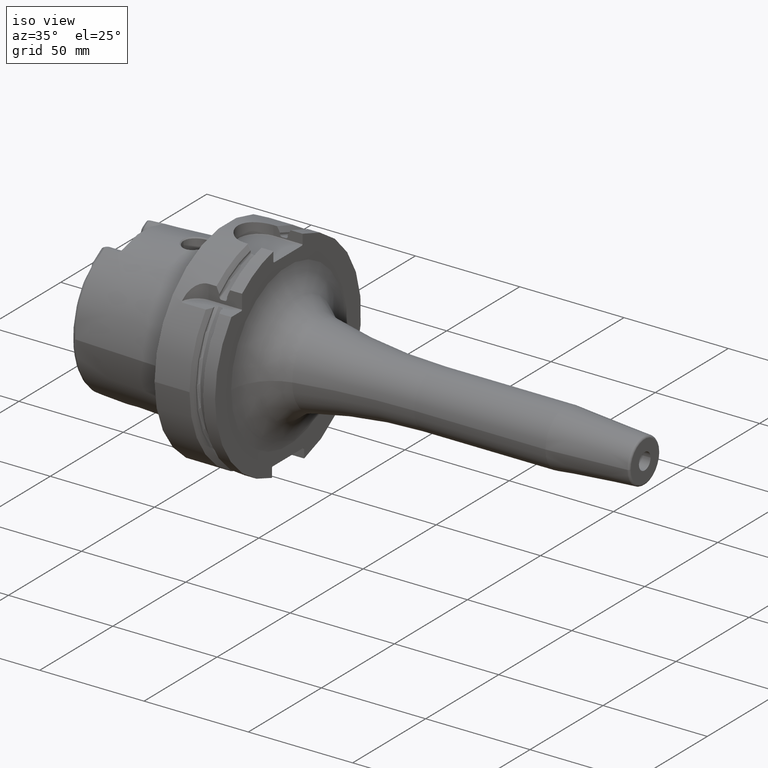
[diagram: clean part render]
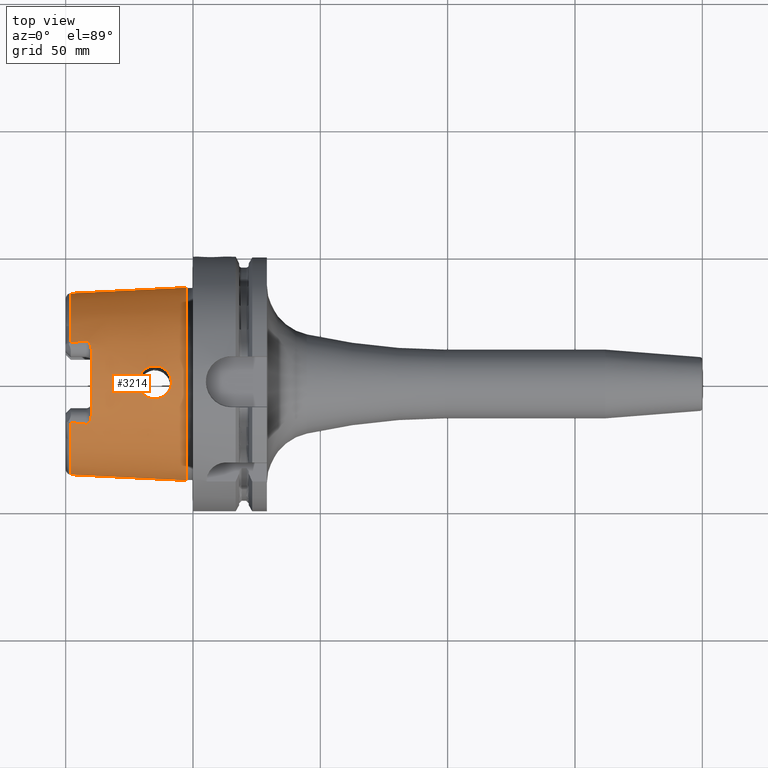
[diagram: tour spotlight — one face highlighted and labeled with its STEP entity id]
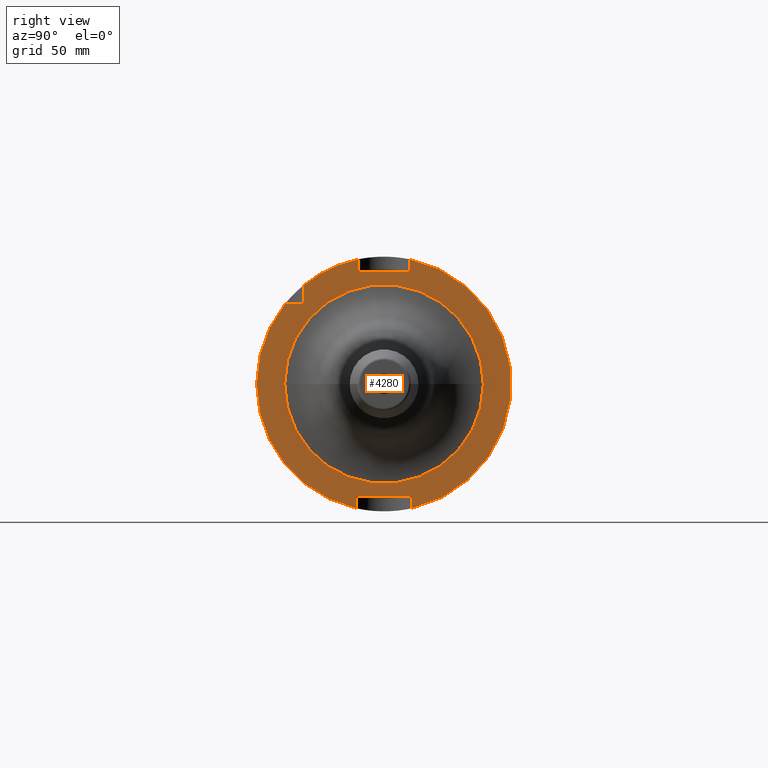
[diagram: tour spotlight — one face highlighted and labeled with its STEP entity id]
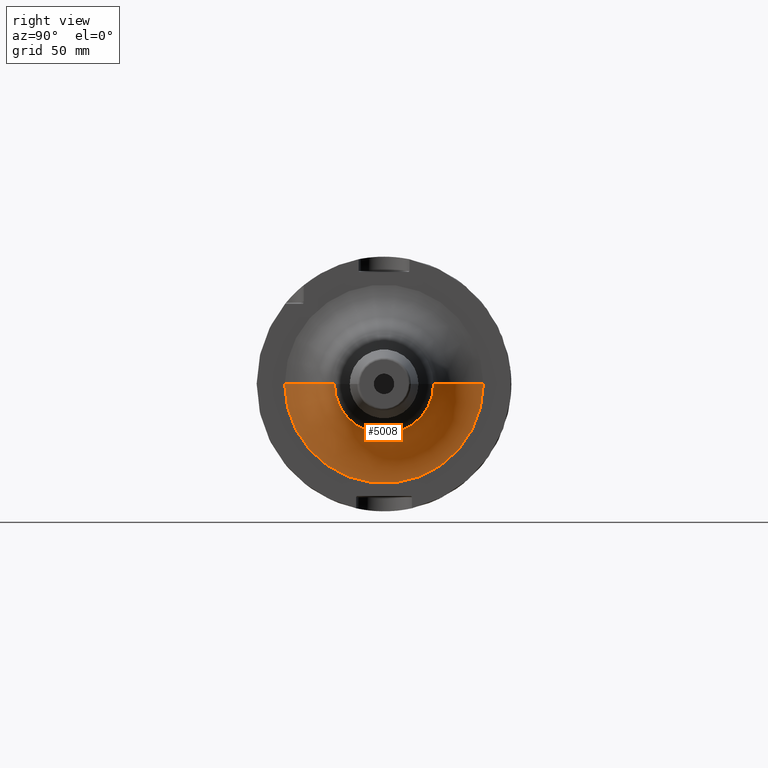
[diagram: tour spotlight — one face highlighted and labeled with its STEP entity id]
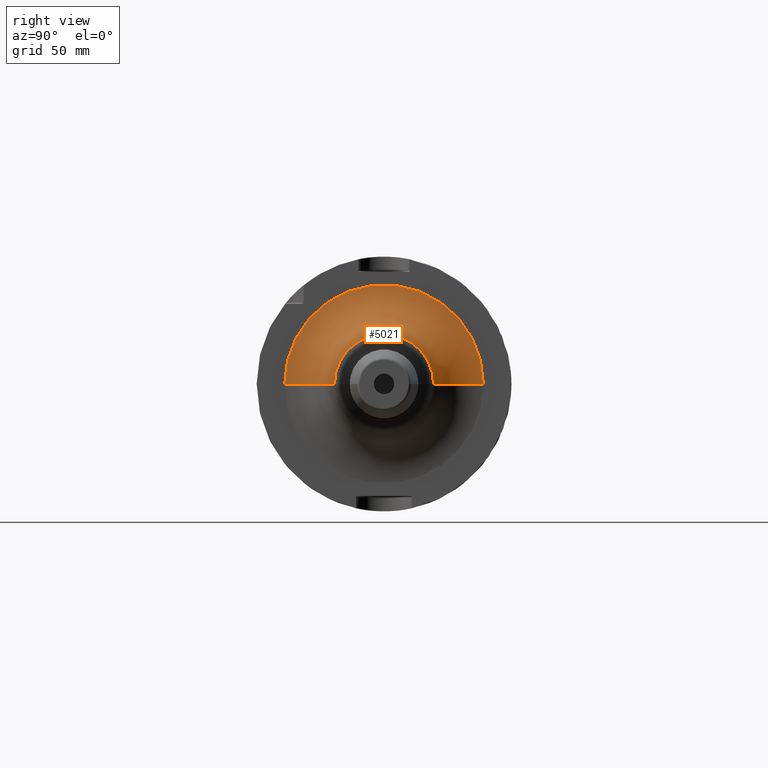
[diagram: tour spotlight — one face highlighted and labeled with its STEP entity id]
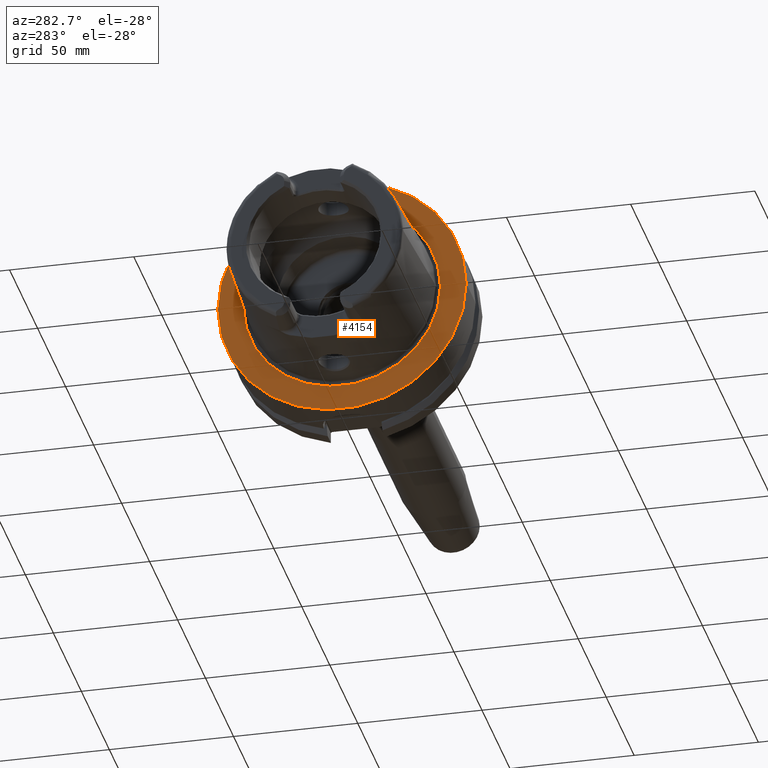
[diagram: tour spotlight — one face highlighted and labeled with its STEP entity id]
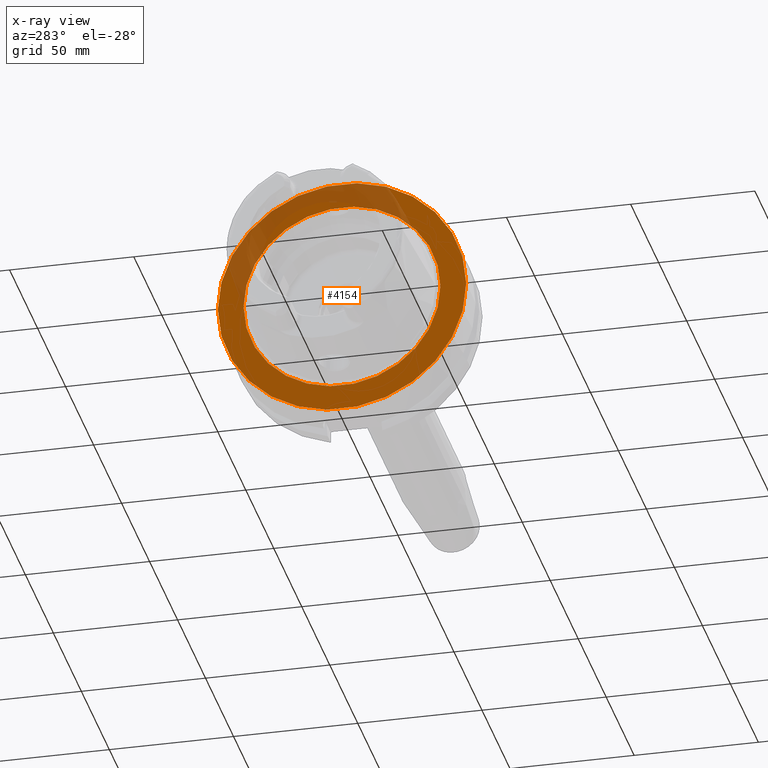
[diagram: x-ray of the same camera — body ghosted, this tour face saturated]
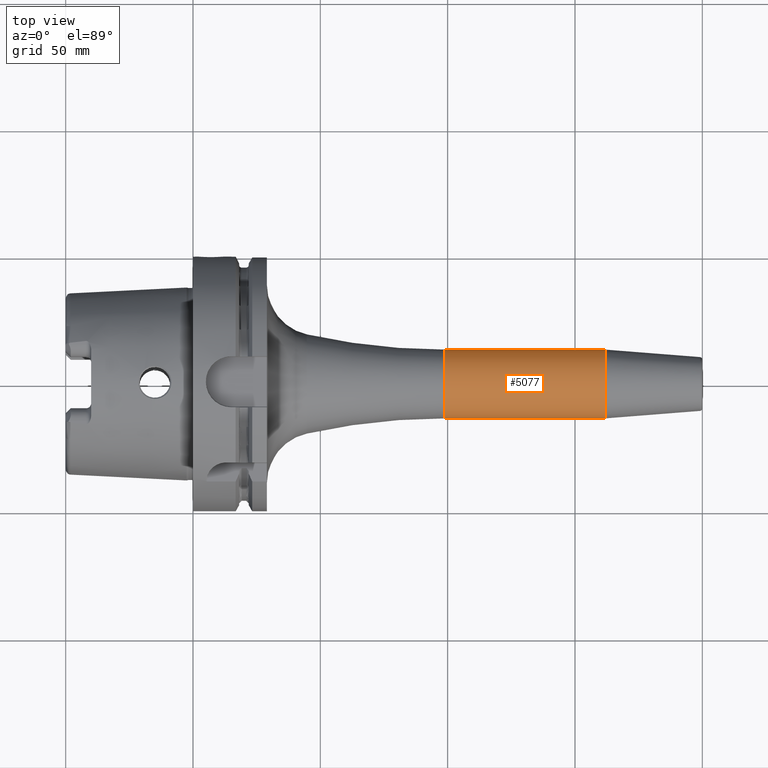
[diagram: tour spotlight — one face highlighted and labeled with its STEP entity id]
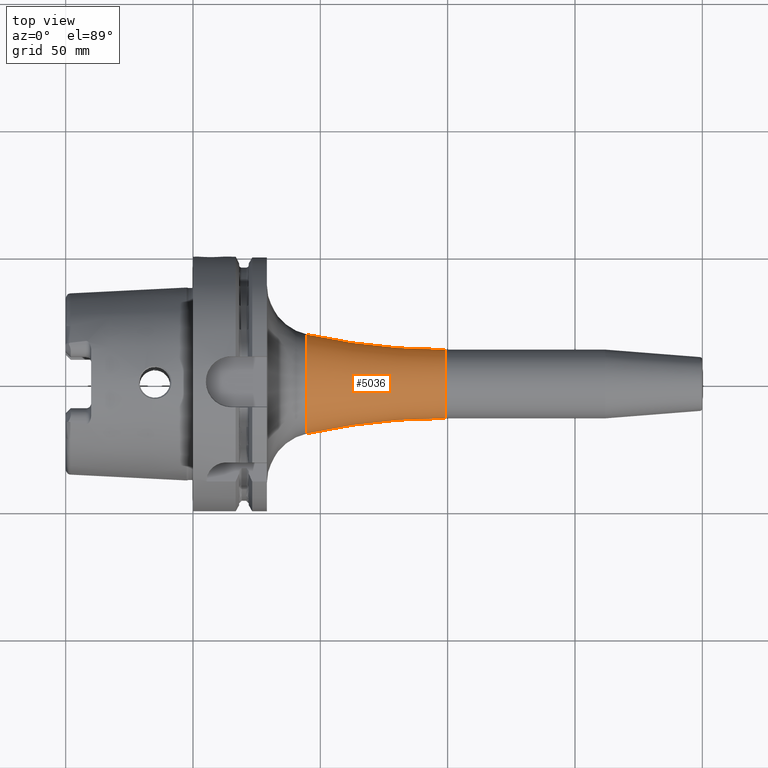
[diagram: tour spotlight — one face highlighted and labeled with its STEP entity id]
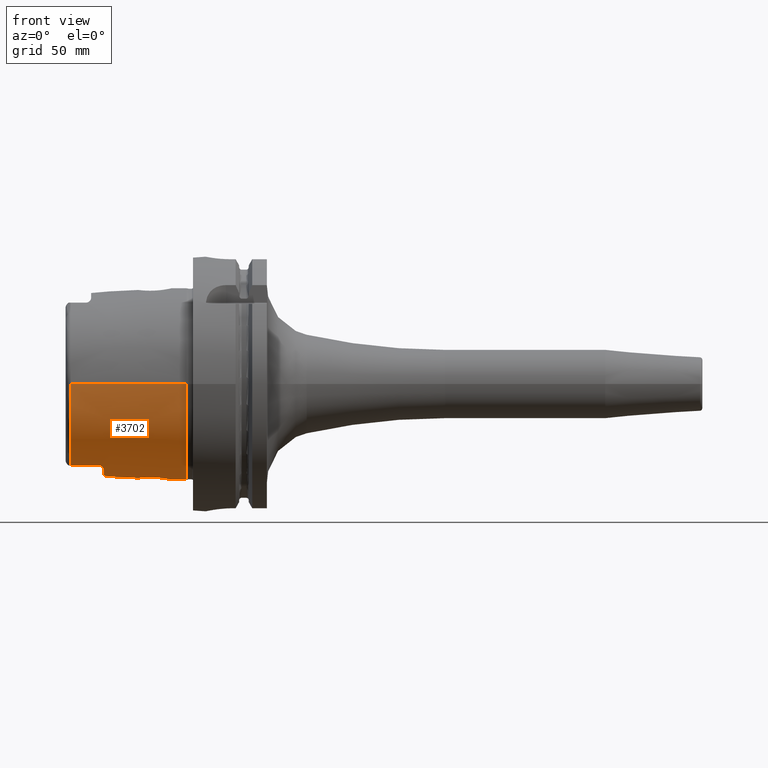
[diagram: tour spotlight — one face highlighted and labeled with its STEP entity id]
A machine part: a face-by-face anatomy tour. The part has 176 B-rep faces; the first image is the clean iso view, then the 8 largest visible faces are spotlighted one at a time (largest first), each with its STEP entity span.

Face 1 — top view, entity #3214. In plain terms, the highlighted conical surface has half-angle 2.868 deg.
Definition (entity closure, byte-faithful):
#2=CARTESIAN_POINT('',(-4.810007448473E1,-1.567653238626E1,3.196E1));
#3=CARTESIAN_POINT('',(-4.743649089753E1,-1.575202511592E1,3.196E1));
#4=CARTESIAN_POINT('',(-4.609985749196E1,-1.590320831227E1,3.196E1));
#5=CARTESIAN_POINT('',(-4.406668280177E1,-1.613055880919E1,3.196E1));
#6=CARTESIAN_POINT('',(-4.269206894520E1,-1.628254944441E1,3.196E1));
#7=CARTESIAN_POINT('',(-4.2E1,-1.635864758744E1,3.196E1));
#9=CARTESIAN_POINT('',(-4.E1,0.E0,0.E0));
#10=DIRECTION('',(1.E0,0.E0,0.E0));
#11=DIRECTION('',(0.E0,3.574556786365E-1,9.339301032789E-1));
#12=AXIS2_PLACEMENT_3D('',#9,#10,#11);
#14=CARTESIAN_POINT('',(-4.2E1,1.635864758744E1,3.196E1));
#15=CARTESIAN_POINT('',(-4.269204070145E1,1.628255255002E1,3.196E1));
#16=CARTESIAN_POINT('',(-4.406661691692E1,1.613056612298E1,3.196E1));
#17=CARTESIAN_POINT('',(-4.609979244919E1,1.590321563865E1,3.196E1));
#18=CARTESIAN_POINT('',(-4.743646302974E1,1.575202828631E1,3.196E1));
#19=CARTESIAN_POINT('',(-4.810007448473E1,1.567653238626E1,3.196E1));
#21=CARTESIAN_POINT('',(-2.5E0,0.E0,0.E0));
#22=DIRECTION('',(1.E0,0.E0,0.E0));
#23=DIRECTION('',(0.E0,1.E0,0.E0));
#24=AXIS2_PLACEMENT_3D('',#21,#22,#23);
#26=CARTESIAN_POINT('',(-2.149938207697E1,5.552926221647E-11,3.693037254664E1));
#27=CARTESIAN_POINT('',(-2.149947810722E1,2.456946967410E-1,3.693041400584E1));
#28=CARTESIAN_POINT('',(-2.146978943123E1,7.663421073483E-1,3.692663668754E1));
#29=CARTESIAN_POINT('',(-2.132902699242E1,1.552723327933E0,3.690919478302E1));
#30=CARTESIAN_POINT('',(-2.108091480959E1,2.342139536845E0,3.687974365394E1));
#31=CARTESIAN_POINT('',(-2.073440330363E1,3.094103832942E0,3.684140909161E1));
#32=CARTESIAN_POINT('',(-2.029456045373E1,3.796705318232E0,3.679744070735E1));
#33=CARTESIAN_POINT('',(-1.976895967621E1,4.437440706102E0,3.675180792921E1));
#34=CARTESIAN_POINT('',(-1.916766491360E1,5.004833501251E0,3.670884542936E1));
#35=CARTESIAN_POINT('',(-1.850089510031E1,5.490460623479E0,3.667275311991E1));
#36=CARTESIAN_POINT('',(-1.777939225152E1,5.887431777884E0,3.664739565010E1));
#37=CARTESIAN_POINT('',(-1.701424609593E1,6.190220322635E0,3.663607600264E1));
#38=CARTESIAN_POINT('',(-1.621758055837E1,6.394419176819E0,3.664131821143E1));
#39=CARTESIAN_POINT('',(-1.539955429301E1,6.497326105441E0,3.666474029556E1));
#40=CARTESIAN_POINT('',(-1.457114975166E1,6.496134002949E0,3.670710840669E1));
#41=CARTESIAN_POINT('',(-1.375127425398E1,6.390454994673E0,3.676745544266E1));
#42=CARTESIAN_POINT('',(-1.294983719070E1,6.181706493026E0,3.684404556607E1));
#43=CARTESIAN_POINT('',(-1.217938970715E1,5.872066509057E0,3.693403258601E1));
#44=CARTESIAN_POINT('',(-1.145343003562E1,5.466036101540E0,3.703341626103E1));
#45=CARTESIAN_POINT('',(-1.078465658031E1,4.970022940288E0,3.713742863004E1));
#46=CARTESIAN_POINT('',(-1.018517891880E1,4.392789013038E0,3.724075525816E1));
#47=CARTESIAN_POINT('',(-9.665388344352E0,3.744837411386E0,3.733802077293E1));
#48=CARTESIAN_POINT('',(-9.234092519568E0,3.038687491876E0,3.742410507514E1));
#49=CARTESIAN_POINT('',(-8.897351452215E0,2.287331206380E0,3.749468513875E1));
#50=CARTESIAN_POINT('',(-8.658527750933E0,1.501792221622E0,3.754652778726E1));
#51=CARTESIAN_POINT('',(-8.527369438248E0,7.337668322055E-1,3.757562813366E1));
#52=CARTESIAN_POINT('',(-8.500550849541E0,2.307484502453E-1,3.758164606668E1));
#53=CARTESIAN_POINT('',(-8.500618238409E0,-3.201212427053E-11,
3.758161093072E1));
#55=CARTESIAN_POINT('',(-8.500618238409E0,-3.201212427053E-11,
3.758161093072E1));
#56=CARTESIAN_POINT('',(-8.500529243712E0,-2.424312186462E-1,3.758165761842E1));
#57=CARTESIAN_POINT('',(-8.529377584627E0,-7.570713761110E-1,3.757517365272E1));
#58=CARTESIAN_POINT('',(-8.666699960505E0,-1.535920192154E0,3.754473037167E1));
#59=CARTESIAN_POINT('',(-8.909712492800E0,-2.320075305293E0,3.749204213674E1));
#60=CARTESIAN_POINT('',(-9.250504215006E0,-3.069650750447E0,3.742074072411E1));
#61=CARTESIAN_POINT('',(-9.685687617568E0,-3.773592271729E0,3.733408895737E1));
#62=CARTESIAN_POINT('',(-1.020908185061E1,-4.418816591912E0,3.723645352953E1));
#63=CARTESIAN_POINT('',(-1.081164311031E1,-4.992724782849E0,3.713300191729E1));
#64=CARTESIAN_POINT('',(-1.148289197008E1,-5.484961003997E0,3.702910971345E1));
#65=CARTESIAN_POINT('',(-1.221077052890E1,-5.886958600290E0,3.693005620282E1));
#66=CARTESIAN_POINT('',(-1.298272715167E1,-6.192450910075E0,3.684056019680E1));
#67=CARTESIAN_POINT('',(-1.378543745730E1,-6.397007236175E0,3.676457229973E1));
#68=CARTESIAN_POINT('',(-1.460657276070E1,-6.498354658048E0,3.670491060908E1));
#69=CARTESIAN_POINT('',(-1.543495839616E1,-6.495033034286E0,3.666334714016E1));
#70=CARTESIAN_POINT('',(-1.625254215847E1,-6.387680563827E0,3.664072182306E1));
#71=CARTESIAN_POINT('',(-1.704827269515E1,-6.179075952149E0,3.663623858926E1));
#72=CARTESIAN_POINT('',(-1.781166108930E1,-5.872129661425E0,3.664822647582E1));
#73=CARTESIAN_POINT('',(-1.853088883617E1,-5.471276112331E0,3.667411627299E1));
#74=CARTESIAN_POINT('',(-1.919496044775E1,-4.982042332370E0,3.671058230959E1));
#75=CARTESIAN_POINT('',(-1.979312959260E1,-4.411388967116E0,3.675374151488E1));
#76=CARTESIAN_POINT('',(-2.031520136204E1,-3.767815751250E0,3.679938652908E1));
#77=CARTESIAN_POINT('',(-2.075116173440E1,-3.062888856216E0,3.684318827995E1));
#78=CARTESIAN_POINT('',(-2.109352623852E1,-2.309166702590E0,3.688120055672E1));
#79=CARTESIAN_POINT('',(-2.133733752753E1,-1.518482485311E0,3.691020909579E1));
#80=CARTESIAN_POINT('',(-2.147183542910E1,-7.429704319279E-1,3.692690027450E1));
#81=CARTESIAN_POINT('',(-2.149945558988E1,-2.340112752743E-1,3.693040395664E1));
#82=CARTESIAN_POINT('',(-2.149938207697E1,5.552926221647E-11,3.693037254664E1));
#248=CARTESIAN_POINT('',(-4.044615405310E1,1.501E1,3.270080868281E1));
#249=CARTESIAN_POINT('',(-4.036716971646E1,1.480714421409E1,3.279827559643E1));
#250=CARTESIAN_POINT('',(-4.023151678165E1,1.441318283024E1,3.298193753654E1));
#251=CARTESIAN_POINT('',(-4.009402199227E1,1.386111148947E1,3.322490472400E1));
#252=CARTESIAN_POINT('',(-4.001617021866E1,1.334582492697E1,3.343918234932E1));
#253=CARTESIAN_POINT('',(-4.E1,1.302441475567E1,3.356551938374E1));
#254=CARTESIAN_POINT('',(-4.E1,1.286965552579E1,3.362475247340E1));
#312=CARTESIAN_POINT('',(-4.810007448473E1,0.E0,0.E0));
#313=DIRECTION('',(1.E0,0.E0,0.E0));
#314=DIRECTION('',(0.E0,1.E0,0.E0));
#315=AXIS2_PLACEMENT_3D('',#312,#313,#314);
#387=CARTESIAN_POINT('',(-4.810007448473E1,0.E0,0.E0));
#388=DIRECTION('',(1.E0,0.E0,0.E0));
#389=DIRECTION('',(0.E0,-4.403806547453E-1,8.978111599474E-1));
#390=AXIS2_PLACEMENT_3D('',#387,#388,#389);
#561=DIRECTION('',(-9.987473526255E-1,5.003724236654E-2,0.E0));
#562=VECTOR('',#561,4.565726694029E1);
#563=CARTESIAN_POINT('',(-2.5E0,-3.788225E1,0.E0));
#564=LINE('',#563,#562);
#570=DIRECTION('',(-9.987473526255E-1,-5.003724236654E-2,0.E0));
#571=VECTOR('',#570,4.565726694029E1);
#572=CARTESIAN_POINT('',(-2.5E0,3.788225E1,0.E0));
#573=LINE('',#572,#571);
#2597=CARTESIAN_POINT('',(-4.E1,-1.286965552579E1,3.362475247340E1));
#2598=CARTESIAN_POINT('',(-4.E1,-1.302441541648E1,3.356551913082E1));
#2599=CARTESIAN_POINT('',(-4.001617018251E1,-1.334582535629E1,
3.343918219674E1));
#2600=CARTESIAN_POINT('',(-4.009402242674E1,-1.386111200207E1,
3.322490442026E1));
#2601=CARTESIAN_POINT('',(-4.023151276023E1,-1.441316885171E1,
3.298194383001E1));
#2602=CARTESIAN_POINT('',(-4.036716744567E1,-1.480713838201E1,
3.279827839859E1));
#2603=CARTESIAN_POINT('',(-4.044615405310E1,-1.501E1,3.270080868281E1));
#2679=CARTESIAN_POINT('',(-4.044615405310E1,-1.501E1,3.270080868281E1));
#2680=CARTESIAN_POINT('',(-4.048970886745E1,-1.512186200292E1,
3.264706190833E1));
#2681=CARTESIAN_POINT('',(-4.058203784729E1,-1.533106618308E1,
3.254453864538E1));
#2682=CARTESIAN_POINT('',(-4.073432021554E1,-1.560191666355E1,
3.240695208273E1));
#2683=CARTESIAN_POINT('',(-4.089735125525E1,-1.582886077686E1,
3.228748605874E1));
#2684=CARTESIAN_POINT('',(-4.106769081077E1,-1.601331012900E1,
3.218678608847E1));
#2685=CARTESIAN_POINT('',(-4.125393253486E1,-1.616457753287E1,
3.210056649743E1));
#2686=CARTESIAN_POINT('',(-4.144626840802E1,-1.627335249792E1,
3.203468630644E1));
#2687=CARTESIAN_POINT('',(-4.163743535609E1,-1.633966611997E1,
3.199012198327E1));
#2688=CARTESIAN_POINT('',(-4.181861360320E1,-1.636784997544E1,
3.196549826812E1));
#2689=CARTESIAN_POINT('',(-4.194004005827E1,-1.636524063030E1,3.196E1));
#2690=CARTESIAN_POINT('',(-4.2E1,-1.635864758744E1,3.196E1));
#2700=CARTESIAN_POINT('',(-4.2E1,1.635864758744E1,3.196E1));
#2701=CARTESIAN_POINT('',(-4.193871342572E1,1.636538650345E1,3.196E1));
#2702=CARTESIAN_POINT('',(-4.181450390691E1,1.636814761969E1,3.196557762379E1));
#2703=CARTESIAN_POINT('',(-4.162243507007E1,1.633619695788E1,3.199274042675E1));
#2704=CARTESIAN_POINT('',(-4.143278453244E1,1.626680995517E1,3.203876886227E1));
#2705=CARTESIAN_POINT('',(-4.124494122381E1,1.615802805146E1,3.210436522250E1));
#2706=CARTESIAN_POINT('',(-4.106242535143E1,1.600818739776E1,3.218962850171E1));
#2707=CARTESIAN_POINT('',(-4.089248890939E1,1.582281513116E1,3.229072139863E1));
#2708=CARTESIAN_POINT('',(-4.073124146543E1,1.559684012110E1,3.240956146553E1));
#2709=CARTESIAN_POINT('',(-4.058058611384E1,1.532793070389E1,3.254608698749E1));
#2710=CARTESIAN_POINT('',(-4.048925691866E1,1.512070126105E1,3.264761961452E1));
#2711=CARTESIAN_POINT('',(-4.044615405310E1,1.501E1,3.270080868281E1));
#2733=CARTESIAN_POINT('',(-2.5E0,3.788225E1,0.E0));
#2734=CARTESIAN_POINT('',(-2.5E0,-3.788225E1,0.E0));
#2735=VERTEX_POINT('',#2733);
#2736=VERTEX_POINT('',#2734);
#2737=CARTESIAN_POINT('',(-4.810007448473E1,3.559768626831E1,0.E0));
#2738=VERTEX_POINT('',#2737);
#2739=CARTESIAN_POINT('',(-4.810007448473E1,-3.559768626831E1,0.E0));
#2740=VERTEX_POINT('',#2739);
#2777=CARTESIAN_POINT('',(-4.810007448473E1,1.567653238626E1,3.196E1));
#2778=VERTEX_POINT('',#2777);
#2779=CARTESIAN_POINT('',(-4.810007448473E1,-1.567653238626E1,3.196E1));
#2780=VERTEX_POINT('',#2779);
#2789=CARTESIAN_POINT('',(-4.E1,1.286965552579E1,3.362475247340E1));
#2790=VERTEX_POINT('',#2789);
#2793=CARTESIAN_POINT('',(-4.2E1,1.635864758744E1,3.196E1));
#2794=VERTEX_POINT('',#2793);
#2795=CARTESIAN_POINT('',(-4.E1,-1.286965552579E1,3.362475247340E1));
#2796=VERTEX_POINT('',#2795);
#2799=CARTESIAN_POINT('',(-4.2E1,-1.635864758744E1,3.196E1));
#2800=VERTEX_POINT('',#2799);
#2801=VERTEX_POINT('',#2711);
#2802=VERTEX_POINT('',#2679);
#2942=VERTEX_POINT('',#26);
#2943=VERTEX_POINT('',#53);
#3177=CARTESIAN_POINT('',(-2.530003724237E1,0.E0,0.E0));
#3178=DIRECTION('',(1.E0,0.E0,0.E0));
#3179=DIRECTION('',(0.E0,-1.E0,0.E0));
#3180=AXIS2_PLACEMENT_3D('',#3177,#3178,#3179);
#3181=CONICAL_SURFACE('',#3180,3.673996813416E1,2.868120487315E0);
#3183=ORIENTED_EDGE('',*,*,#3182,.T.);
#3185=ORIENTED_EDGE('',*,*,#3184,.F.);
#3187=ORIENTED_EDGE('',*,*,#3186,.F.);
#3189=ORIENTED_EDGE('',*,*,#3188,.F.);
#3191=ORIENTED_EDGE('',*,*,#3190,.F.);
#3193=ORIENTED_EDGE('',*,*,#3192,.F.);
#3195=ORIENTED_EDGE('',*,*,#3194,.T.);
#3197=ORIENTED_EDGE('',*,*,#3196,.F.);
#3199=ORIENTED_EDGE('',*,*,#3198,.F.);
#3201=ORIENTED_EDGE('',*,*,#3200,.T.);
#3203=ORIENTED_EDGE('',*,*,#3202,.T.);
#3205=ORIENTED_EDGE('',*,*,#3204,.F.);
#3206=EDGE_LOOP('',(#3183,#3185,#3187,#3189,#3191,#3193,#3195,#3197,#3199,#3201,
#3203,#3205));
#3207=FACE_OUTER_BOUND('',#3206,.F.);
#3209=ORIENTED_EDGE('',*,*,#3208,.F.);
#3211=ORIENTED_EDGE('',*,*,#3210,.F.);
#3212=EDGE_LOOP('',(#3209,#3211));
#3213=FACE_BOUND('',#3212,.F.);
#3214=ADVANCED_FACE('',(#3207,#3213),#3181,.T.);
#8=B_SPLINE_CURVE_WITH_KNOTS('',3,(#2,#3,#4,#5,#6,#7),.UNSPECIFIED.,.F.,.F.,(4,
1,1,4),(0.E0,3.333333333333E-1,6.666666666667E-1,1.E0),.UNSPECIFIED.);
#13=CIRCLE('',#12,3.60035E1);
#20=B_SPLINE_CURVE_WITH_KNOTS('',3,(#14,#15,#16,#17,#18,#19),.UNSPECIFIED.,.F.,
.F.,(4,1,1,4),(0.E0,3.333333333333E-1,6.666666666667E-1,1.E0),.UNSPECIFIED.);
#25=CIRCLE('',#24,3.788225E1);
#54=B_SPLINE_CURVE_WITH_KNOTS('',3,(#26,#27,#28,#29,#30,#31,#32,#33,#34,#35,#36,
#37,#38,#39,#40,#41,#42,#43,#44,#45,#46,#47,#48,#49,#50,#51,#52,#53),
.UNSPECIFIED.,.F.,.F.,(4,1,1,1,1,1,1,1,1,1,1,1,1,1,1,1,1,1,1,1,1,1,1,1,1,4),(
0.E0,3.626792904996E-2,7.667308714875E-2,1.170782452475E-1,1.574834033463E-1,
1.978885614451E-1,2.382937195439E-1,2.786988776427E-1,3.191040357415E-1,
3.595091938403E-1,3.999143519391E-1,4.403195100379E-1,4.807246681367E-1,
5.211298262355E-1,5.615349843343E-1,6.019401424331E-1,6.423453005319E-1,
6.827504586307E-1,7.231556167295E-1,7.635607748283E-1,8.039659329271E-1,
8.443710910259E-1,8.847762491247E-1,9.251814072235E-1,9.655865653223E-1,1.E0),
.UNSPECIFIED.);
#83=B_SPLINE_CURVE_WITH_KNOTS('',3,(#55,#56,#57,#58,#59,#60,#61,#62,#63,#64,#65,
#66,#67,#68,#69,#70,#71,#72,#73,#74,#75,#76,#77,#78,#79,#80,#81,#82),
.UNSPECIFIED.,.F.,.F.,(4,1,1,1,1,1,1,1,1,1,1,1,1,1,1,1,1,1,1,1,1,1,1,1,1,4),(
0.E0,3.618329534544E-2,7.658712835106E-2,1.169909613567E-1,1.573947943623E-1,
1.977986273679E-1,2.382024603735E-1,2.786062933791E-1,3.190101263848E-1,
3.594139593904E-1,3.998177923960E-1,4.402216254016E-1,4.806254584072E-1,
5.210292914128E-1,5.614331244184E-1,6.018369574241E-1,6.422407904297E-1,
6.826446234353E-1,7.230484564409E-1,7.634522894465E-1,8.038561224521E-1,
8.442599554578E-1,8.846637884634E-1,9.250676214690E-1,9.654714544746E-1,1.E0),
.UNSPECIFIED.);
#255=B_SPLINE_CURVE_WITH_KNOTS('',3,(#248,#249,#250,#251,#252,#253,#254),
.UNSPECIFIED.,.F.,.F.,(4,1,1,1,4),(0.E0,2.5E-1,5.E-1,7.5E-1,1.E0),
.UNSPECIFIED.);
#316=CIRCLE('',#315,3.559768626831E1);
#391=CIRCLE('',#390,3.559768626831E1);
#2604=B_SPLINE_CURVE_WITH_KNOTS('',3,(#2597,#2598,#2599,#2600,#2601,#2602,
#2603),.UNSPECIFIED.,.F.,.F.,(4,1,1,1,4),(0.E0,2.5E-1,5.E-1,7.5E-1,1.E0),
.UNSPECIFIED.);
#2691=B_SPLINE_CURVE_WITH_KNOTS('',3,(#2679,#2680,#2681,#2682,#2683,#2684,#2685,
#2686,#2687,#2688,#2689,#2690),.UNSPECIFIED.,.F.,.F.,(4,1,1,1,1,1,1,1,1,4),
(0.E0,1.111111111111E-1,2.222222222222E-1,3.333333333333E-1,4.444444444444E-1,
5.555555555556E-1,6.666666666667E-1,7.777777777778E-1,8.888888888889E-1,1.E0),
.UNSPECIFIED.);
#2712=B_SPLINE_CURVE_WITH_KNOTS('',3,(#2700,#2701,#2702,#2703,#2704,#2705,#2706,
#2707,#2708,#2709,#2710,#2711),.UNSPECIFIED.,.F.,.F.,(4,1,1,1,1,1,1,1,1,4),
(0.E0,1.111111111111E-1,2.222222222222E-1,3.333333333333E-1,4.444444444444E-1,
5.555555555556E-1,6.666666666667E-1,7.777777777778E-1,8.888888888889E-1,1.E0),
.UNSPECIFIED.);
#3182=EDGE_CURVE('',#2780,#2800,#8,.T.);
#3184=EDGE_CURVE('',#2802,#2800,#2691,.T.);
#3186=EDGE_CURVE('',#2796,#2802,#2604,.T.);
#3188=EDGE_CURVE('',#2790,#2796,#13,.T.);
#3190=EDGE_CURVE('',#2801,#2790,#255,.T.);
#3192=EDGE_CURVE('',#2794,#2801,#2712,.T.);
#3194=EDGE_CURVE('',#2794,#2778,#20,.T.);
#3196=EDGE_CURVE('',#2738,#2778,#316,.T.);
#3198=EDGE_CURVE('',#2735,#2738,#573,.T.);
#3200=EDGE_CURVE('',#2735,#2736,#25,.T.);
#3202=EDGE_CURVE('',#2736,#2740,#564,.T.);
#3204=EDGE_CURVE('',#2780,#2740,#391,.T.);
#3208=EDGE_CURVE('',#2942,#2943,#54,.T.);
#3210=EDGE_CURVE('',#2943,#2942,#83,.T.);

Face 2 — right view, entity #4280. In plain terms, the highlighted planar face has unit normal (1, 0, 0).
Definition (entity closure, byte-faithful):
#1051=DIRECTION('',(0.E0,-7.071067811865E-1,-7.071067811865E-1));
#1052=VECTOR('',#1051,5.656854249492E-1);
#1053=CARTESIAN_POINT('',(2.9E1,-3.15E1,3.19E1));
#1054=LINE('',#1053,#1052);
#1059=DIRECTION('',(0.E0,1.E0,0.E0));
#1060=VECTOR('',#1059,6.929756630708E0);
#1061=CARTESIAN_POINT('',(2.9E1,-3.882975663071E1,3.15E1));
#1062=LINE('',#1061,#1060);
#1063=DIRECTION('',(0.E0,0.E0,-1.E0));
#1064=VECTOR('',#1063,6.929756630708E0);
#1065=CARTESIAN_POINT('',(2.9E1,-3.15E1,3.882975663071E1));
#1066=LINE('',#1065,#1064);
#1067=DIRECTION('',(0.E0,0.E0,-1.E0));
#1068=VECTOR('',#1067,4.589794855664E0);
#1069=CARTESIAN_POINT('',(2.9E1,-1.E1,4.898979485566E1));
#1070=LINE('',#1069,#1068);
#1071=DIRECTION('',(0.E0,1.E0,0.E0));
#1072=VECTOR('',#1071,1.92E1);
#1073=CARTESIAN_POINT('',(2.9E1,-9.6E0,4.4E1));
#1074=LINE('',#1073,#1072);
#1075=DIRECTION('',(0.E0,0.E0,-1.E0));
#1076=VECTOR('',#1075,4.589794855664E0);
#1077=CARTESIAN_POINT('',(2.9E1,1.E1,4.898979485566E1));
#1078=LINE('',#1077,#1076);
#1079=DIRECTION('',(0.E0,0.E0,1.E0));
#1080=VECTOR('',#1079,4.374993593029E0);
#1081=CARTESIAN_POINT('',(2.9E1,1.1E1,-4.877499359303E1));
#1082=LINE('',#1081,#1080);
#1083=DIRECTION('',(0.E0,-1.E0,0.E0));
#1084=VECTOR('',#1083,2.12E1);
#1085=CARTESIAN_POINT('',(2.9E1,1.06E1,-4.4E1));
#1086=LINE('',#1085,#1084);
#1087=DIRECTION('',(0.E0,0.E0,1.E0));
#1088=VECTOR('',#1087,4.374993593029E0);
#1089=CARTESIAN_POINT('',(2.9E1,-1.1E1,-4.877499359303E1));
#1090=LINE('',#1089,#1088);
#1091=CARTESIAN_POINT('',(2.9E1,0.E0,0.E0));
#1092=DIRECTION('',(1.E0,0.E0,0.E0));
#1093=DIRECTION('',(0.E0,-1.E0,0.E0));
#1094=AXIS2_PLACEMENT_3D('',#1091,#1092,#1093);
#1096=CARTESIAN_POINT('',(2.9E1,0.E0,0.E0));
#1097=DIRECTION('',(1.E0,0.E0,0.E0));
#1098=DIRECTION('',(0.E0,1.E0,0.E0));
#1099=AXIS2_PLACEMENT_3D('',#1096,#1097,#1098);
#1114=CARTESIAN_POINT('',(2.9E1,0.E0,0.E0));
#1115=DIRECTION('',(1.E0,0.E0,0.E0));
#1116=DIRECTION('',(0.E0,2.2E-1,-9.754998718606E-1));
#1117=AXIS2_PLACEMENT_3D('',#1114,#1115,#1116);
#1127=CARTESIAN_POINT('',(2.9E1,0.E0,0.E0));
#1128=DIRECTION('',(1.E0,0.E0,0.E0));
#1129=DIRECTION('',(0.E0,-7.765951326142E-1,6.3E-1));
#1130=AXIS2_PLACEMENT_3D('',#1127,#1128,#1129);
#1144=CARTESIAN_POINT('',(2.9E1,0.E0,0.E0));
#1145=DIRECTION('',(1.E0,0.E0,0.E0));
#1146=DIRECTION('',(0.E0,-2.E-1,9.797958971133E-1));
#1147=AXIS2_PLACEMENT_3D('',#1144,#1145,#1146);
#1251=DIRECTION('',(0.E0,7.071067811866E-1,-7.071067811865E-1));
#1252=VECTOR('',#1251,5.656854249492E-1);
#1253=CARTESIAN_POINT('',(2.9E1,1.06E1,-4.4E1));
#1254=LINE('',#1253,#1252);
#1259=DIRECTION('',(0.E0,7.071067811866E-1,7.071067811865E-1));
#1260=VECTOR('',#1259,5.656854249492E-1);
#1261=CARTESIAN_POINT('',(2.9E1,-1.1E1,-4.44E1));
#1262=LINE('',#1261,#1260);
#1748=DIRECTION('',(0.E0,-7.071067811866E-1,-7.071067811865E-1));
#1749=VECTOR('',#1748,5.656854249492E-1);
#1750=CARTESIAN_POINT('',(2.9E1,1.E1,4.44E1));
#1751=LINE('',#1750,#1749);
#1756=DIRECTION('',(0.E0,-7.071067811866E-1,7.071067811865E-1));
#1757=VECTOR('',#1756,5.656854249492E-1);
#1758=CARTESIAN_POINT('',(2.9E1,-9.6E0,4.4E1));
#1759=LINE('',#1758,#1757);
#2966=CARTESIAN_POINT('',(2.9E1,-9.6E0,4.4E1));
#2967=CARTESIAN_POINT('',(2.9E1,-1.E1,4.44E1));
#2968=VERTEX_POINT('',#2966);
#2969=VERTEX_POINT('',#2967);
#2970=CARTESIAN_POINT('',(2.9E1,1.E1,4.44E1));
#2971=CARTESIAN_POINT('',(2.9E1,9.6E0,4.4E1));
#2972=VERTEX_POINT('',#2970);
#2973=VERTEX_POINT('',#2971);
#2974=CARTESIAN_POINT('',(2.9E1,1.06E1,-4.4E1));
#2975=CARTESIAN_POINT('',(2.9E1,1.1E1,-4.44E1));
#2976=VERTEX_POINT('',#2974);
#2977=VERTEX_POINT('',#2975);
#2978=CARTESIAN_POINT('',(2.9E1,-1.1E1,-4.44E1));
#2979=CARTESIAN_POINT('',(2.9E1,-1.06E1,-4.4E1));
#2980=VERTEX_POINT('',#2978);
#2981=VERTEX_POINT('',#2979);
#3019=CARTESIAN_POINT('',(2.9E1,1.1E1,-4.877499359303E1));
#3021=VERTEX_POINT('',#3019);
#3027=CARTESIAN_POINT('',(2.9E1,-1.1E1,-4.877499359303E1));
#3029=VERTEX_POINT('',#3027);
#3062=CARTESIAN_POINT('',(2.9E1,-1.E1,4.898979485566E1));
#3063=VERTEX_POINT('',#3062);
#3064=CARTESIAN_POINT('',(2.9E1,1.E1,4.898979485566E1));
#3065=VERTEX_POINT('',#3064);
#3068=CARTESIAN_POINT('',(2.9E1,-3.15E1,3.19E1));
#3069=CARTESIAN_POINT('',(2.9E1,-3.19E1,3.15E1));
#3070=VERTEX_POINT('',#3068);
#3071=VERTEX_POINT('',#3069);
#3077=CARTESIAN_POINT('',(2.9E1,-3.882975663071E1,3.15E1));
#3079=VERTEX_POINT('',#3077);
#3081=CARTESIAN_POINT('',(2.9E1,-3.15E1,3.882975663071E1));
#3083=VERTEX_POINT('',#3081);
#3165=CARTESIAN_POINT('',(2.9E1,-3.900055679356E1,0.E0));
#3166=CARTESIAN_POINT('',(2.9E1,3.900055679356E1,0.E0));
#3167=VERTEX_POINT('',#3165);
#3168=VERTEX_POINT('',#3166);
#4236=CARTESIAN_POINT('',(2.9E1,0.E0,0.E0));
#4237=DIRECTION('',(1.E0,0.E0,0.E0));
#4238=DIRECTION('',(0.E0,-1.E0,0.E0));
#4239=AXIS2_PLACEMENT_3D('',#4236,#4237,#4238);
#4240=PLANE('',#4239);
#4242=ORIENTED_EDGE('',*,*,#4241,.T.);
#4243=ORIENTED_EDGE('',*,*,#4226,.F.);
#4245=ORIENTED_EDGE('',*,*,#4244,.F.);
#4247=ORIENTED_EDGE('',*,*,#4246,.F.);
#4249=ORIENTED_EDGE('',*,*,#4248,.T.);
#4251=ORIENTED_EDGE('',*,*,#4250,.F.);
#4253=ORIENTED_EDGE('',*,*,#4252,.T.);
#4255=ORIENTED_EDGE('',*,*,#4254,.F.);
#4257=ORIENTED_EDGE('',*,*,#4256,.F.);
#4259=ORIENTED_EDGE('',*,*,#4258,.F.);
#4261=ORIENTED_EDGE('',*,*,#4260,.T.);
#4263=ORIENTED_EDGE('',*,*,#4262,.F.);
#4265=ORIENTED_EDGE('',*,*,#4264,.T.);
#4267=ORIENTED_EDGE('',*,*,#4266,.F.);
#4269=ORIENTED_EDGE('',*,*,#4268,.F.);
#4271=ORIENTED_EDGE('',*,*,#4270,.F.);
#4272=EDGE_LOOP('',(#4242,#4243,#4245,#4247,#4249,#4251,#4253,#4255,#4257,#4259,
#4261,#4263,#4265,#4267,#4269,#4271));
#4273=FACE_OUTER_BOUND('',#4272,.F.);
#4275=ORIENTED_EDGE('',*,*,#4274,.T.);
#4277=ORIENTED_EDGE('',*,*,#4276,.T.);
#4278=EDGE_LOOP('',(#4275,#4277));
#4279=FACE_BOUND('',#4278,.F.);
#4280=ADVANCED_FACE('',(#4273,#4279),#4240,.T.);
#1095=CIRCLE('',#1094,3.900055679356E1);
#1100=CIRCLE('',#1099,3.900055679356E1);
#1118=CIRCLE('',#1117,5.E1);
#1131=CIRCLE('',#1130,5.E1);
#1148=CIRCLE('',#1147,5.E1);
#4226=EDGE_CURVE('',#3070,#3071,#1054,.T.);
#4241=EDGE_CURVE('',#3079,#3071,#1062,.T.);
#4244=EDGE_CURVE('',#3083,#3070,#1066,.T.);
#4246=EDGE_CURVE('',#3063,#3083,#1148,.T.);
#4248=EDGE_CURVE('',#3063,#2969,#1070,.T.);
#4250=EDGE_CURVE('',#2968,#2969,#1759,.T.);
#4252=EDGE_CURVE('',#2968,#2973,#1074,.T.);
#4254=EDGE_CURVE('',#2972,#2973,#1751,.T.);
#4256=EDGE_CURVE('',#3065,#2972,#1078,.T.);
#4258=EDGE_CURVE('',#3021,#3065,#1118,.T.);
#4260=EDGE_CURVE('',#3021,#2977,#1082,.T.);
#4262=EDGE_CURVE('',#2976,#2977,#1254,.T.);
#4264=EDGE_CURVE('',#2976,#2981,#1086,.T.);
#4266=EDGE_CURVE('',#2980,#2981,#1262,.T.);
#4268=EDGE_CURVE('',#3029,#2980,#1090,.T.);
#4270=EDGE_CURVE('',#3079,#3029,#1131,.T.);
#4274=EDGE_CURVE('',#3167,#3168,#1095,.T.);
#4276=EDGE_CURVE('',#3168,#3167,#1100,.T.);

Face 3 — right view, entity #5008. In plain terms, the highlighted toroidal blend (fillet) surface has major radius 39.0006 mm and minor (blend) radius 20 mm.
Definition (entity closure, byte-faithful):
#1091=CARTESIAN_POINT('',(2.9E1,0.E0,0.E0));
#1092=DIRECTION('',(1.E0,0.E0,0.E0));
#1093=DIRECTION('',(0.E0,-1.E0,0.E0));
#1094=AXIS2_PLACEMENT_3D('',#1091,#1092,#1093);
#1810=CARTESIAN_POINT('',(4.9E1,-3.900055679356E1,1.328853693749E-12));
#1811=DIRECTION('',(0.E0,-3.407257115340E-14,-1.E0));
#1812=DIRECTION('',(-1.E0,0.E0,0.E0));
#1813=AXIS2_PLACEMENT_3D('',#1810,#1811,#1812);
#1815=CARTESIAN_POINT('',(4.9E1,3.900055679356E1,-1.333572141604E-12));
#1816=DIRECTION('',(0.E0,3.419400179672E-14,1.E0));
#1817=DIRECTION('',(-1.E0,0.E0,0.E0));
#1818=AXIS2_PLACEMENT_3D('',#1815,#1816,#1817);
#1825=CARTESIAN_POINT('',(4.465217391304E1,0.E0,0.E0));
#1826=DIRECTION('',(1.E0,0.E0,0.E0));
#1827=DIRECTION('',(0.E0,-1.E0,0.E0));
#1828=AXIS2_PLACEMENT_3D('',#1825,#1826,#1827);
#3165=CARTESIAN_POINT('',(2.9E1,-3.900055679356E1,0.E0));
#3166=CARTESIAN_POINT('',(2.9E1,3.900055679356E1,0.E0));
#3167=VERTEX_POINT('',#3165);
#3168=VERTEX_POINT('',#3166);
#3169=CARTESIAN_POINT('',(4.465217391304E1,-1.947886607996E1,0.E0));
#3170=CARTESIAN_POINT('',(4.465217391304E1,1.947886607996E1,0.E0));
#3171=VERTEX_POINT('',#3169);
#3172=VERTEX_POINT('',#3170);
#4994=CARTESIAN_POINT('',(4.9E1,0.E0,0.E0));
#4995=DIRECTION('',(1.E0,0.E0,0.E0));
#4996=DIRECTION('',(0.E0,-9.999884730089E-1,4.801442422910E-3));
#4997=AXIS2_PLACEMENT_3D('',#4994,#4995,#4996);
#4998=TOROIDAL_SURFACE('',#4997,3.900055679356E1,2.E1);
#4999=ORIENTED_EDGE('',*,*,#4274,.F.);
#5001=ORIENTED_EDGE('',*,*,#5000,.T.);
#5003=ORIENTED_EDGE('',*,*,#5002,.T.);
#5005=ORIENTED_EDGE('',*,*,#5004,.F.);
#5006=EDGE_LOOP('',(#4999,#5001,#5003,#5005));
#5007=FACE_OUTER_BOUND('',#5006,.F.);
#5008=ADVANCED_FACE('',(#5007),#4998,.F.);
#1095=CIRCLE('',#1094,3.900055679356E1);
#1814=CIRCLE('',#1813,2.E1);
#1819=CIRCLE('',#1818,2.E1);
#1829=CIRCLE('',#1828,1.947886607996E1);
#4274=EDGE_CURVE('',#3167,#3168,#1095,.T.);
#5000=EDGE_CURVE('',#3167,#3171,#1814,.T.);
#5002=EDGE_CURVE('',#3171,#3172,#1829,.T.);
#5004=EDGE_CURVE('',#3168,#3172,#1819,.T.);

Face 4 — right view, entity #5021. In plain terms, the highlighted toroidal blend (fillet) surface has major radius 39.0006 mm and minor (blend) radius 20 mm.
Definition (entity closure, byte-faithful):
#1096=CARTESIAN_POINT('',(2.9E1,0.E0,0.E0));
#1097=DIRECTION('',(1.E0,0.E0,0.E0));
#1098=DIRECTION('',(0.E0,1.E0,0.E0));
#1099=AXIS2_PLACEMENT_3D('',#1096,#1097,#1098);
#1810=CARTESIAN_POINT('',(4.9E1,-3.900055679356E1,1.328853693749E-12));
#1811=DIRECTION('',(0.E0,-3.407257115340E-14,-1.E0));
#1812=DIRECTION('',(-1.E0,0.E0,0.E0));
#1813=AXIS2_PLACEMENT_3D('',#1810,#1811,#1812);
#1815=CARTESIAN_POINT('',(4.9E1,3.900055679356E1,-1.333572141604E-12));
#1816=DIRECTION('',(0.E0,3.419400179672E-14,1.E0));
#1817=DIRECTION('',(-1.E0,0.E0,0.E0));
#1818=AXIS2_PLACEMENT_3D('',#1815,#1816,#1817);
#1820=CARTESIAN_POINT('',(4.465217391304E1,0.E0,0.E0));
#1821=DIRECTION('',(1.E0,0.E0,0.E0));
#1822=DIRECTION('',(0.E0,1.E0,0.E0));
#1823=AXIS2_PLACEMENT_3D('',#1820,#1821,#1822);
#3165=CARTESIAN_POINT('',(2.9E1,-3.900055679356E1,0.E0));
#3166=CARTESIAN_POINT('',(2.9E1,3.900055679356E1,0.E0));
#3167=VERTEX_POINT('',#3165);
#3168=VERTEX_POINT('',#3166);
#3169=CARTESIAN_POINT('',(4.465217391304E1,-1.947886607996E1,0.E0));
#3170=CARTESIAN_POINT('',(4.465217391304E1,1.947886607996E1,0.E0));
#3171=VERTEX_POINT('',#3169);
#3172=VERTEX_POINT('',#3170);
#5009=CARTESIAN_POINT('',(4.9E1,0.E0,0.E0));
#5010=DIRECTION('',(1.E0,0.E0,0.E0));
#5011=DIRECTION('',(0.E0,9.999884730089E-1,-4.801442422910E-3));
#5012=AXIS2_PLACEMENT_3D('',#5009,#5010,#5011);
#5013=TOROIDAL_SURFACE('',#5012,3.900055679356E1,2.E1);
#5014=ORIENTED_EDGE('',*,*,#4276,.F.);
#5015=ORIENTED_EDGE('',*,*,#5004,.T.);
#5017=ORIENTED_EDGE('',*,*,#5016,.T.);
#5018=ORIENTED_EDGE('',*,*,#5000,.F.);
#5019=EDGE_LOOP('',(#5014,#5015,#5017,#5018));
#5020=FACE_OUTER_BOUND('',#5019,.F.);
#5021=ADVANCED_FACE('',(#5020),#5013,.F.);
#1100=CIRCLE('',#1099,3.900055679356E1);
#1814=CIRCLE('',#1813,2.E1);
#1819=CIRCLE('',#1818,2.E1);
#1824=CIRCLE('',#1823,1.947886607996E1);
#4276=EDGE_CURVE('',#3168,#3167,#1100,.T.);
#5000=EDGE_CURVE('',#3167,#3171,#1814,.T.);
#5004=EDGE_CURVE('',#3168,#3172,#1819,.T.);
#5016=EDGE_CURVE('',#3172,#3171,#1824,.T.);

Face 5 — auxiliary view, entity #4154. An x-ray twin of the same camera follows (body ghosted, this face saturated) — the face is partly hidden behind the body. In plain terms, the highlighted planar face has unit normal (1, 0, 0).
Definition (entity closure, byte-faithful):
#905=CARTESIAN_POINT('',(2.842170943040E-14,0.E0,0.E0));
#906=DIRECTION('',(1.E0,0.E0,0.E0));
#907=DIRECTION('',(0.E0,1.E0,0.E0));
#908=AXIS2_PLACEMENT_3D('',#905,#906,#907);
#910=CARTESIAN_POINT('',(2.842170943040E-14,0.E0,0.E0));
#911=DIRECTION('',(-1.E0,0.E0,0.E0));
#912=DIRECTION('',(0.E0,1.E0,0.E0));
#913=AXIS2_PLACEMENT_3D('',#910,#911,#912);
#915=CARTESIAN_POINT('',(0.E0,0.E0,0.E0));
#916=DIRECTION('',(-1.E0,0.E0,0.E0));
#917=DIRECTION('',(0.E0,-1.E0,0.E0));
#918=AXIS2_PLACEMENT_3D('',#915,#916,#917);
#920=CARTESIAN_POINT('',(0.E0,0.E0,0.E0));
#921=DIRECTION('',(-1.E0,0.E0,0.E0));
#922=DIRECTION('',(0.E0,1.E0,0.E0));
#923=AXIS2_PLACEMENT_3D('',#920,#921,#922);
#2713=CARTESIAN_POINT('',(2.842170943040E-14,5.E1,0.E0));
#2714=CARTESIAN_POINT('',(2.842170943040E-14,-5.E1,0.E0));
#2715=VERTEX_POINT('',#2713);
#2716=VERTEX_POINT('',#2714);
#2741=CARTESIAN_POINT('',(0.E0,-3.963225E1,0.E0));
#2742=VERTEX_POINT('',#2741);
#2743=CARTESIAN_POINT('',(0.E0,3.963225E1,0.E0));
#2744=VERTEX_POINT('',#2743);
#4139=CARTESIAN_POINT('',(0.E0,0.E0,0.E0));
#4140=DIRECTION('',(1.E0,0.E0,0.E0));
#4141=DIRECTION('',(0.E0,-1.E0,0.E0));
#4142=AXIS2_PLACEMENT_3D('',#4139,#4140,#4141);
#4143=PLANE('',#4142);
#4145=ORIENTED_EDGE('',*,*,#4144,.T.);
#4147=ORIENTED_EDGE('',*,*,#4146,.F.);
#4148=EDGE_LOOP('',(#4145,#4147));
#4149=FACE_OUTER_BOUND('',#4148,.F.);
#4150=ORIENTED_EDGE('',*,*,#4134,.T.);
#4151=ORIENTED_EDGE('',*,*,#4118,.T.);
#4152=EDGE_LOOP('',(#4150,#4151));
#4153=FACE_BOUND('',#4152,.F.);
#4154=ADVANCED_FACE('',(#4149,#4153),#4143,.F.);
#909=CIRCLE('',#908,5.E1);
#914=CIRCLE('',#913,5.E1);
#919=CIRCLE('',#918,3.963225E1);
#924=CIRCLE('',#923,3.963225E1);
#4118=EDGE_CURVE('',#2744,#2742,#924,.T.);
#4134=EDGE_CURVE('',#2742,#2744,#919,.T.);
#4144=EDGE_CURVE('',#2715,#2716,#909,.T.);
#4146=EDGE_CURVE('',#2715,#2716,#914,.T.);

Face 6 — top view, entity #5077. In plain terms, the highlighted cylindrical surface (edge-blend (fillet) strip) has radius 13.5 mm, axis along (1, 0, 0).
Definition (entity closure, byte-faithful):
#1845=DIRECTION('',(-1.E0,0.E0,0.E0));
#1846=VECTOR('',#1845,6.288138579148E1);
#1847=CARTESIAN_POINT('',(1.618813857915E2,-1.35E1,0.E0));
#1848=LINE('',#1847,#1846);
#1854=DIRECTION('',(-1.E0,0.E0,0.E0));
#1855=VECTOR('',#1854,6.288138579148E1);
#1856=CARTESIAN_POINT('',(1.618813857915E2,1.35E1,0.E0));
#1857=LINE('',#1856,#1855);
#1858=CARTESIAN_POINT('',(9.9E1,0.E0,0.E0));
#1859=DIRECTION('',(1.E0,0.E0,0.E0));
#1860=DIRECTION('',(0.E0,1.E0,0.E0));
#1861=AXIS2_PLACEMENT_3D('',#1858,#1859,#1860);
#1863=CARTESIAN_POINT('',(1.618813857915E2,0.E0,0.E0));
#1864=DIRECTION('',(1.E0,0.E0,0.E0));
#1865=DIRECTION('',(0.E0,1.E0,0.E0));
#1866=AXIS2_PLACEMENT_3D('',#1863,#1864,#1865);
#3149=CARTESIAN_POINT('',(1.618813857915E2,1.35E1,0.E0));
#3150=CARTESIAN_POINT('',(1.618813857915E2,-1.35E1,0.E0));
#3151=VERTEX_POINT('',#3149);
#3152=VERTEX_POINT('',#3150);
#3173=CARTESIAN_POINT('',(9.9E1,1.35E1,0.E0));
#3174=VERTEX_POINT('',#3173);
#3175=CARTESIAN_POINT('',(9.9E1,-1.35E1,0.E0));
#3176=VERTEX_POINT('',#3175);
#5065=CARTESIAN_POINT('',(2.045E1,0.E0,0.E0));
#5066=DIRECTION('',(1.E0,0.E0,0.E0));
#5067=DIRECTION('',(0.E0,-1.E0,0.E0));
#5068=AXIS2_PLACEMENT_3D('',#5065,#5066,#5067);
#5069=CYLINDRICAL_SURFACE('',#5068,1.35E1);
#5070=ORIENTED_EDGE('',*,*,#5030,.F.);
#5071=ORIENTED_EDGE('',*,*,#5060,.F.);
#5073=ORIENTED_EDGE('',*,*,#5072,.T.);
#5074=ORIENTED_EDGE('',*,*,#5056,.T.);
#5075=EDGE_LOOP('',(#5070,#5071,#5073,#5074));
#5076=FACE_OUTER_BOUND('',#5075,.F.);
#5077=ADVANCED_FACE('',(#5076),#5069,.T.);
#1862=CIRCLE('',#1861,1.35E1);
#1867=CIRCLE('',#1866,1.35E1);
#5030=EDGE_CURVE('',#3174,#3176,#1862,.T.);
#5056=EDGE_CURVE('',#3152,#3176,#1848,.T.);
#5060=EDGE_CURVE('',#3151,#3174,#1857,.T.);
#5072=EDGE_CURVE('',#3151,#3152,#1867,.T.);

Face 7 — top view, entity #5036. In plain terms, the highlighted toroidal blend (fillet) surface has major radius 263.5 mm and minor (blend) radius 250 mm.
Definition (entity closure, byte-faithful):
#1820=CARTESIAN_POINT('',(4.465217391304E1,0.E0,0.E0));
#1821=DIRECTION('',(1.E0,0.E0,0.E0));
#1822=DIRECTION('',(0.E0,1.E0,0.E0));
#1823=AXIS2_PLACEMENT_3D('',#1820,#1821,#1822);
#1830=CARTESIAN_POINT('',(9.9E1,-2.635E2,-6.453888631507E-14));
#1831=DIRECTION('',(0.E0,0.E0,1.E0));
#1832=DIRECTION('',(0.E0,1.E0,0.E0));
#1833=AXIS2_PLACEMENT_3D('',#1830,#1831,#1832);
#1835=CARTESIAN_POINT('',(9.9E1,2.635E2,3.226944315753E-14));
#1836=DIRECTION('',(0.E0,0.E0,-1.E0));
#1837=DIRECTION('',(0.E0,-1.E0,0.E0));
#1838=AXIS2_PLACEMENT_3D('',#1835,#1836,#1837);
#1858=CARTESIAN_POINT('',(9.9E1,0.E0,0.E0));
#1859=DIRECTION('',(1.E0,0.E0,0.E0));
#1860=DIRECTION('',(0.E0,1.E0,0.E0));
#1861=AXIS2_PLACEMENT_3D('',#1858,#1859,#1860);
#3169=CARTESIAN_POINT('',(4.465217391304E1,-1.947886607996E1,0.E0));
#3170=CARTESIAN_POINT('',(4.465217391304E1,1.947886607996E1,0.E0));
#3171=VERTEX_POINT('',#3169);
#3172=VERTEX_POINT('',#3170);
#3173=CARTESIAN_POINT('',(9.9E1,1.35E1,0.E0));
#3174=VERTEX_POINT('',#3173);
#3175=CARTESIAN_POINT('',(9.9E1,-1.35E1,0.E0));
#3176=VERTEX_POINT('',#3175);
#5022=CARTESIAN_POINT('',(9.9E1,0.E0,0.E0));
#5023=DIRECTION('',(1.E0,0.E0,0.E0));
#5024=DIRECTION('',(0.E0,-1.E0,0.E0));
#5025=AXIS2_PLACEMENT_3D('',#5022,#5023,#5024);
#5026=TOROIDAL_SURFACE('',#5025,2.635E2,2.5E2);
#5027=ORIENTED_EDGE('',*,*,#5016,.F.);
#5029=ORIENTED_EDGE('',*,*,#5028,.F.);
#5031=ORIENTED_EDGE('',*,*,#5030,.T.);
#5033=ORIENTED_EDGE('',*,*,#5032,.T.);
#5034=EDGE_LOOP('',(#5027,#5029,#5031,#5033));
#5035=FACE_OUTER_BOUND('',#5034,.F.);
#5036=ADVANCED_FACE('',(#5035),#5026,.F.);
#1824=CIRCLE('',#1823,1.947886607996E1);
#1834=CIRCLE('',#1833,2.5E2);
#1839=CIRCLE('',#1838,2.5E2);
#1862=CIRCLE('',#1861,1.35E1);
#5016=EDGE_CURVE('',#3172,#3171,#1824,.T.);
#5028=EDGE_CURVE('',#3174,#3172,#1839,.T.);
#5030=EDGE_CURVE('',#3174,#3176,#1862,.T.);
#5032=EDGE_CURVE('',#3176,#3171,#1834,.T.);

Face 8 — front view, entity #3702. In plain terms, the highlighted conical surface has half-angle 2.868 deg.
Definition (entity closure, byte-faithful):
#307=CARTESIAN_POINT('',(-4.810007448473E1,0.E0,0.E0));
#308=DIRECTION('',(-1.E0,0.E0,0.E0));
#309=DIRECTION('',(0.E0,1.E0,0.E0));
#310=AXIS2_PLACEMENT_3D('',#307,#308,#309);
#392=CARTESIAN_POINT('',(-4.810007448473E1,0.E0,0.E0));
#393=DIRECTION('',(-1.E0,0.E0,0.E0));
#394=DIRECTION('',(0.E0,-4.403806547453E-1,-8.978111599474E-1));
#395=AXIS2_PLACEMENT_3D('',#392,#393,#394);
#542=CARTESIAN_POINT('',(-4.810007448473E1,1.567653238626E1,-3.196E1));
#543=CARTESIAN_POINT('',(-4.691253354608E1,1.581163323682E1,-3.196E1));
#544=CARTESIAN_POINT('',(-4.450693295241E1,1.608249060017E1,-3.196E1));
#545=CARTESIAN_POINT('',(-4.080822205394E1,1.649061651786E1,-3.196E1));
#546=CARTESIAN_POINT('',(-3.827971844003E1,1.676420418060E1,-3.196E1));
#547=CARTESIAN_POINT('',(-3.7E1,1.690135066910E1,-3.196E1));
#549=CARTESIAN_POINT('',(-3.5E1,0.E0,0.E0));
#550=DIRECTION('',(1.E0,0.E0,0.E0));
#551=DIRECTION('',(0.E0,-3.659355944317E-1,-9.306401779033E-1));
#552=AXIS2_PLACEMENT_3D('',#549,#550,#551);
#554=CARTESIAN_POINT('',(-3.7E1,-1.690135066910E1,-3.196E1));
#555=CARTESIAN_POINT('',(-3.827957528302E1,-1.676421952263E1,-3.196E1));
#556=CARTESIAN_POINT('',(-4.080788819039E1,-1.649065289085E1,-3.196E1));
#557=CARTESIAN_POINT('',(-4.450660828452E1,-1.608252688744E1,-3.196E1));
#558=CARTESIAN_POINT('',(-4.691239447940E1,-1.581164905777E1,-3.196E1));
#559=CARTESIAN_POINT('',(-4.810007448473E1,-1.567653238626E1,-3.196E1));
#561=DIRECTION('',(-9.987473526255E-1,5.003724236654E-2,0.E0));
#562=VECTOR('',#561,4.565726694029E1);
#563=CARTESIAN_POINT('',(-2.5E0,-3.788225E1,0.E0));
#564=LINE('',#563,#562);
#565=CARTESIAN_POINT('',(-2.5E0,0.E0,0.E0));
#566=DIRECTION('',(1.E0,0.E0,0.E0));
#567=DIRECTION('',(0.E0,-1.E0,0.E0));
#568=AXIS2_PLACEMENT_3D('',#565,#566,#567);
#570=DIRECTION('',(-9.987473526255E-1,-5.003724236654E-2,0.E0));
#571=VECTOR('',#570,4.565726694029E1);
#572=CARTESIAN_POINT('',(-2.5E0,3.788225E1,0.E0));
#573=LINE('',#572,#571);
#574=CARTESIAN_POINT('',(-8.500618228215E0,-4.475741567310E-11,
-3.758161092103E1));
#575=CARTESIAN_POINT('',(-8.500550626629E0,2.307123186996E-1,
-3.758164609326E1));
#576=CARTESIAN_POINT('',(-8.527361627144E0,7.336655055656E-1,
-3.757562989718E1));
#577=CARTESIAN_POINT('',(-8.658487901890E0,1.501607868725E0,-3.754653658895E1));
#578=CARTESIAN_POINT('',(-8.897257248323E0,2.287068896E0,-3.749470537780E1));
#579=CARTESIAN_POINT('',(-9.233930830616E0,3.038376631295E0,-3.742413833235E1));
#580=CARTESIAN_POINT('',(-9.665180423226E0,3.744542284435E0,-3.733806106411E1));
#581=CARTESIAN_POINT('',(-1.018494007596E1,4.392525906197E0,-3.724079839048E1));
#582=CARTESIAN_POINT('',(-1.078433252086E1,4.969742317677E0,-3.713748237766E1));
#583=CARTESIAN_POINT('',(-1.145295368828E1,5.465719413789E0,-3.703348699097E1));
#584=CARTESIAN_POINT('',(-1.217872434304E1,5.871741506149E0,-3.693411809702E1));
#585=CARTESIAN_POINT('',(-1.294907725396E1,6.181458789403E0,-3.684412609384E1));
#586=CARTESIAN_POINT('',(-1.375077304364E1,6.390383355882E0,-3.676749362246E1));
#587=CARTESIAN_POINT('',(-1.457124723519E1,6.496150992971E0,-3.670710043979E1));
#588=CARTESIAN_POINT('',(-1.539963323060E1,6.497327684605E0,-3.666473599908E1));
#589=CARTESIAN_POINT('',(-1.621811808436E1,6.394337052140E0,-3.664130538745E1));
#590=CARTESIAN_POINT('',(-1.701498565109E1,6.189982543680E0,-3.663607891146E1));
#591=CARTESIAN_POINT('',(-1.778004900083E1,5.887116868581E0,-3.664741303044E1));
#592=CARTESIAN_POINT('',(-1.850137732128E1,5.490146143225E0,-3.667277568766E1));
#593=CARTESIAN_POINT('',(-1.916799834207E1,5.004550368212E0,-3.670886700839E1));
#594=CARTESIAN_POINT('',(-1.976920462201E1,4.437176205297E0,-3.675182754134E1));
#595=CARTESIAN_POINT('',(-2.029477253260E1,3.796411168194E0,-3.679746060413E1));
#596=CARTESIAN_POINT('',(-2.073457092496E1,3.093790391877E0,-3.684142692236E1));
#597=CARTESIAN_POINT('',(-2.108101531841E1,2.341868855664E0,-3.687975533364E1));
#598=CARTESIAN_POINT('',(-2.132907064090E1,1.552529546171E0,-3.690920014808E1));
#599=CARTESIAN_POINT('',(-2.146979802624E1,7.662360037897E-1,
-3.692663777819E1));
#600=CARTESIAN_POINT('',(-2.149947827869E1,2.456572466609E-1,
-3.693041402385E1));
#601=CARTESIAN_POINT('',(-2.149938206728E1,4.252313622681E-11,
-3.693037255683E1));
#603=CARTESIAN_POINT('',(-2.149938206728E1,4.252313622681E-11,
-3.693037255683E1));
#604=CARTESIAN_POINT('',(-2.149945538697E1,-2.340479521171E-1,
-3.693040395485E1));
#605=CARTESIAN_POINT('',(-2.147182734210E1,-7.430736824871E-1,
-3.692689923808E1));
#606=CARTESIAN_POINT('',(-2.133729628437E1,-1.518670363132E0,
-3.691020402111E1));
#607=CARTESIAN_POINT('',(-2.109342961129E1,-2.309431654899E0,
-3.688118929283E1));
#608=CARTESIAN_POINT('',(-2.075099845802E1,-3.063198291705E0,
-3.684317083610E1));
#609=CARTESIAN_POINT('',(-2.031499413642E1,-3.768106404610E0,
-3.679936697460E1));
#610=CARTESIAN_POINT('',(-1.979289029767E1,-4.411650229581E0,
-3.675372219731E1));
#611=CARTESIAN_POINT('',(-1.919463266022E1,-4.982323872691E0,
-3.671056084722E1));
#612=CARTESIAN_POINT('',(-1.853041114464E1,-5.471591578572E0,
-3.667409350441E1));
#613=CARTESIAN_POINT('',(-1.781100487862E1,-5.872448697570E0,
-3.664820853921E1));
#614=CARTESIAN_POINT('',(-1.704753604412E1,-6.179316936003E0,
-3.663623504527E1));
#615=CARTESIAN_POINT('',(-1.625202603452E1,-6.387759294270E0,
-3.664073415043E1));
#616=CARTESIAN_POINT('',(-1.543496245560E1,-6.495024783349E0,
-3.666334839609E1));
#617=CARTESIAN_POINT('',(-1.460654750338E1,-6.498344270788E0,
-3.670491373185E1));
#618=CARTESIAN_POINT('',(-1.378596486485E1,-6.397082641248E0,
-3.676453213359E1));
#619=CARTESIAN_POINT('',(-1.298349373108E1,-6.192696568201E0,
-3.684047961027E1));
#620=CARTESIAN_POINT('',(-1.221144146647E1,-5.887281631963E0,
-3.692997057387E1));
#621=CARTESIAN_POINT('',(-1.148337668307E1,-5.485279169694E0,
-3.702903815359E1));
#622=CARTESIAN_POINT('',(-1.081197580096E1,-4.993009521795E0,
-3.713294698881E1));
#623=CARTESIAN_POINT('',(-1.020932849949E1,-4.419085304323E0,
-3.723640914420E1));
#624=CARTESIAN_POINT('',(-9.685901962872E0,-3.773893108114E0,
-3.733404753344E1));
#625=CARTESIAN_POINT('',(-9.250671307496E0,-3.069967665821E0,
-3.742070642908E1));
#626=CARTESIAN_POINT('',(-8.909811119218E0,-2.320344961222E0,
-3.749202098184E1));
#627=CARTESIAN_POINT('',(-8.666742386503E0,-1.536111417479E0,
-3.754472100539E1));
#628=CARTESIAN_POINT('',(-8.529385927200E0,-7.571760095601E-1,
-3.757517178087E1));
#629=CARTESIAN_POINT('',(-8.500529445925E0,-2.424682905367E-1,
-3.758165757513E1));
#630=CARTESIAN_POINT('',(-8.500618228215E0,-4.475741567310E-11,
-3.758161092103E1));
#644=CARTESIAN_POINT('',(-3.525270277560E1,1.501E1,-3.298688520224E1));
#645=CARTESIAN_POINT('',(-3.528534211849E1,1.513484846724E1,-3.292827892747E1));
#646=CARTESIAN_POINT('',(-3.535659114497E1,1.537361797185E1,-3.281400095423E1));
#647=CARTESIAN_POINT('',(-3.548419296966E1,1.570424630972E1,-3.264982183345E1));
#648=CARTESIAN_POINT('',(-3.562487069608E1,1.598931575733E1,-3.250314611781E1));
#649=CARTESIAN_POINT('',(-3.577616803803E1,1.623191524099E1,-3.237407229234E1));
#650=CARTESIAN_POINT('',(-3.593586343865E1,1.643375355599E1,-3.226300002168E1));
#651=CARTESIAN_POINT('',(-3.610247622728E1,1.659835163566E1,-3.216916661381E1));
#652=CARTESIAN_POINT('',(-3.628387335068E1,1.673284687743E1,-3.208910564772E1));
#653=CARTESIAN_POINT('',(-3.646929278561E1,1.682849462631E1,-3.202850145999E1));
#654=CARTESIAN_POINT('',(-3.665268151350E1,1.688632035229E1,-3.198763365132E1));
#655=CARTESIAN_POINT('',(-3.682605028784E1,1.691041315903E1,-3.196506559814E1));
#656=CARTESIAN_POINT('',(-3.694247506704E1,1.690751557406E1,-3.196E1));
#657=CARTESIAN_POINT('',(-3.7E1,1.690135066910E1,-3.196E1));
#659=CARTESIAN_POINT('',(-3.5E1,1.326662904053E1,-3.373942900971E1));
#660=CARTESIAN_POINT('',(-3.5E1,1.343868538316E1,-3.367177499958E1));
#661=CARTESIAN_POINT('',(-3.501772820886E1,1.379762114623E1,-3.352663792870E1));
#662=CARTESIAN_POINT('',(-3.510106181354E1,1.437663105579E1,-3.327825241176E1));
#663=CARTESIAN_POINT('',(-3.519623214612E1,1.479399468517E1,-3.308828225672E1));
#664=CARTESIAN_POINT('',(-3.525270277560E1,1.501E1,-3.298688520224E1));
#794=CARTESIAN_POINT('',(-3.525270277560E1,-1.501E1,-3.298688520224E1));
#795=CARTESIAN_POINT('',(-3.519623503110E1,-1.479400572048E1,
-3.308827707653E1));
#796=CARTESIAN_POINT('',(-3.510106651291E1,-1.437665722375E1,
-3.327824091962E1));
#797=CARTESIAN_POINT('',(-3.501772741615E1,-1.379761960865E1,
-3.352663874321E1));
#798=CARTESIAN_POINT('',(-3.5E1,-1.343868456055E1,-3.367177532304E1));
#799=CARTESIAN_POINT('',(-3.5E1,-1.326662904053E1,-3.373942900971E1));
#806=CARTESIAN_POINT('',(-3.7E1,-1.690135066910E1,-3.196E1));
#807=CARTESIAN_POINT('',(-3.694105098899E1,-1.690766819146E1,-3.196E1));
#808=CARTESIAN_POINT('',(-3.682165804795E1,-1.691069512865E1,
-3.196516571864E1));
#809=CARTESIAN_POINT('',(-3.663738639512E1,-1.688312526699E1,
-3.199018906640E1));
#810=CARTESIAN_POINT('',(-3.645510025775E1,-1.682223827784E1,
-3.203259314290E1));
#811=CARTESIAN_POINT('',(-3.627410510575E1,-1.672636778758E1,
-3.209303313888E1));
#812=CARTESIAN_POINT('',(-3.609632853779E1,-1.659293907050E1,
-3.217230584166E1));
#813=CARTESIAN_POINT('',(-3.592925092948E1,-1.642640915267E1,
-3.226711747878E1));
#814=CARTESIAN_POINT('',(-3.576988123363E1,-1.622286102910E1,
-3.237896532757E1));
#815=CARTESIAN_POINT('',(-3.561995095366E1,-1.598020953691E1,
-3.250789603110E1));
#816=CARTESIAN_POINT('',(-3.548248183207E1,-1.569950921203E1,
-3.265215582464E1));
#817=CARTESIAN_POINT('',(-3.535882357255E1,-1.537978468576E1,
-3.281096523600E1));
#818=CARTESIAN_POINT('',(-3.528614819240E1,-1.513793177358E1,
-3.292683156410E1));
#819=CARTESIAN_POINT('',(-3.525270277560E1,-1.501E1,-3.298688520224E1));
#2733=CARTESIAN_POINT('',(-2.5E0,3.788225E1,0.E0));
#2734=CARTESIAN_POINT('',(-2.5E0,-3.788225E1,0.E0));
#2735=VERTEX_POINT('',#2733);
#2736=VERTEX_POINT('',#2734);
#2737=CARTESIAN_POINT('',(-4.810007448473E1,3.559768626831E1,0.E0));
#2738=VERTEX_POINT('',#2737);
#2739=CARTESIAN_POINT('',(-4.810007448473E1,-3.559768626831E1,0.E0));
#2740=VERTEX_POINT('',#2739);
#2857=CARTESIAN_POINT('',(-4.810007448473E1,1.567653238626E1,-3.196E1));
#2858=VERTEX_POINT('',#2857);
#2859=CARTESIAN_POINT('',(-4.810007448473E1,-1.567653238626E1,-3.196E1));
#2860=VERTEX_POINT('',#2859);
#2862=CARTESIAN_POINT('',(-3.525270277560E1,-1.501E1,-3.298688520224E1));
#2864=VERTEX_POINT('',#2862);
#2865=VERTEX_POINT('',#799);
#2866=VERTEX_POINT('',#659);
#2867=VERTEX_POINT('',#664);
#2878=CARTESIAN_POINT('',(-3.7E1,-1.690135066910E1,-3.196E1));
#2879=VERTEX_POINT('',#2878);
#2880=CARTESIAN_POINT('',(-3.7E1,1.690135066910E1,-3.196E1));
#2881=VERTEX_POINT('',#2880);
#2946=VERTEX_POINT('',#574);
#2947=VERTEX_POINT('',#601);
#3670=CARTESIAN_POINT('',(-2.530003724237E1,0.E0,0.E0));
#3671=DIRECTION('',(1.E0,0.E0,0.E0));
#3672=DIRECTION('',(0.E0,-1.E0,0.E0));
#3673=AXIS2_PLACEMENT_3D('',#3670,#3671,#3672);
#3674=CONICAL_SURFACE('',#3673,3.673996813416E1,2.868120487315E0);
#3676=ORIENTED_EDGE('',*,*,#3675,.T.);
#3678=ORIENTED_EDGE('',*,*,#3677,.F.);
#3680=ORIENTED_EDGE('',*,*,#3679,.F.);
#3682=ORIENTED_EDGE('',*,*,#3681,.F.);
#3684=ORIENTED_EDGE('',*,*,#3683,.F.);
#3686=ORIENTED_EDGE('',*,*,#3685,.F.);
#3687=ORIENTED_EDGE('',*,*,#3661,.T.);
#3688=ORIENTED_EDGE('',*,*,#3500,.T.);
#3689=ORIENTED_EDGE('',*,*,#3202,.F.);
#3691=ORIENTED_EDGE('',*,*,#3690,.T.);
#3692=ORIENTED_EDGE('',*,*,#3198,.T.);
#3693=ORIENTED_EDGE('',*,*,#3479,.T.);
#3694=EDGE_LOOP('',(#3676,#3678,#3680,#3682,#3684,#3686,#3687,#3688,#3689,#3691,
#3692,#3693));
#3695=FACE_OUTER_BOUND('',#3694,.F.);
#3697=ORIENTED_EDGE('',*,*,#3696,.F.);
#3699=ORIENTED_EDGE('',*,*,#3698,.F.);
#3700=EDGE_LOOP('',(#3697,#3699));
#3701=FACE_BOUND('',#3700,.F.);
#3702=ADVANCED_FACE('',(#3695,#3701),#3674,.T.);
#311=CIRCLE('',#310,3.559768626831E1);
#396=CIRCLE('',#395,3.559768626831E1);
#548=B_SPLINE_CURVE_WITH_KNOTS('',3,(#542,#543,#544,#545,#546,#547),
.UNSPECIFIED.,.F.,.F.,(4,1,1,4),(0.E0,3.333333333333E-1,6.666666666667E-1,1.E0),
.UNSPECIFIED.);
#553=CIRCLE('',#552,3.6254E1);
#560=B_SPLINE_CURVE_WITH_KNOTS('',3,(#554,#555,#556,#557,#558,#559),
.UNSPECIFIED.,.F.,.F.,(4,1,1,4),(0.E0,3.333333333333E-1,6.666666666667E-1,1.E0),
.UNSPECIFIED.);
#569=CIRCLE('',#568,3.788225E1);
#602=B_SPLINE_CURVE_WITH_KNOTS('',3,(#574,#575,#576,#577,#578,#579,#580,#581,
#582,#583,#584,#585,#586,#587,#588,#589,#590,#591,#592,#593,#594,#595,#596,#597,
#598,#599,#600,#601),.UNSPECIFIED.,.F.,.F.,(4,1,1,1,1,1,1,1,1,1,1,1,1,1,1,1,1,1,
1,1,1,1,1,1,1,4),(0.E0,3.441266963499E-2,7.481788366542E-2,1.152230976959E-1,
1.556283117263E-1,1.960335257567E-1,2.364387397872E-1,2.768439538176E-1,
3.172491678480E-1,3.576543818785E-1,3.980595959089E-1,4.384648099393E-1,
4.788700239698E-1,5.192752380002E-1,5.596804520306E-1,6.000856660611E-1,
6.404908800915E-1,6.808960941219E-1,7.213013081524E-1,7.617065221828E-1,
8.021117362132E-1,8.425169502437E-1,8.829221642741E-1,9.233273783045E-1,
9.637325923350E-1,1.E0),.UNSPECIFIED.);
#631=B_SPLINE_CURVE_WITH_KNOTS('',3,(#603,#604,#605,#606,#607,#608,#609,#610,
#611,#612,#613,#614,#615,#616,#617,#618,#619,#620,#621,#622,#623,#624,#625,#626,
#627,#628,#629,#630),.UNSPECIFIED.,.F.,.F.,(4,1,1,1,1,1,1,1,1,1,1,1,1,1,1,1,1,1,
1,1,1,1,1,1,1,4),(0.E0,3.452929677679E-2,7.493307390290E-2,1.153368510290E-1,
1.557406281551E-1,1.961444052812E-1,2.365481824073E-1,2.769519595334E-1,
3.173557366596E-1,3.577595137857E-1,3.981632909118E-1,4.385670680379E-1,
4.789708451640E-1,5.193746222901E-1,5.597783994162E-1,6.001821765423E-1,
6.405859536684E-1,6.809897307945E-1,7.213935079206E-1,7.617972850467E-1,
8.022010621729E-1,8.426048392990E-1,8.830086164251E-1,9.234123935512E-1,
9.638161706773E-1,1.E0),.UNSPECIFIED.);
#658=B_SPLINE_CURVE_WITH_KNOTS('',3,(#644,#645,#646,#647,#648,#649,#650,#651,
#652,#653,#654,#655,#656,#657),.UNSPECIFIED.,.F.,.F.,(4,1,1,1,1,1,1,1,1,1,1,4),(
0.E0,9.090909090909E-2,1.818181818182E-1,2.727272727273E-1,3.636363636364E-1,
4.545454545455E-1,5.454545454545E-1,6.363636363636E-1,7.272727272727E-1,
8.181818181818E-1,9.090909090909E-1,1.E0),.UNSPECIFIED.);
#665=B_SPLINE_CURVE_WITH_KNOTS('',3,(#659,#660,#661,#662,#663,#664),
.UNSPECIFIED.,.F.,.F.,(4,1,1,4),(0.E0,3.333333333333E-1,6.666666666667E-1,1.E0),
.UNSPECIFIED.);
#800=B_SPLINE_CURVE_WITH_KNOTS('',3,(#794,#795,#796,#797,#798,#799),
.UNSPECIFIED.,.F.,.F.,(4,1,1,4),(0.E0,3.333333333333E-1,6.666666666667E-1,1.E0),
.UNSPECIFIED.);
#820=B_SPLINE_CURVE_WITH_KNOTS('',3,(#806,#807,#808,#809,#810,#811,#812,#813,
#814,#815,#816,#817,#818,#819),.UNSPECIFIED.,.F.,.F.,(4,1,1,1,1,1,1,1,1,1,1,4),(
0.E0,9.090909090909E-2,1.818181818182E-1,2.727272727273E-1,3.636363636364E-1,
4.545454545455E-1,5.454545454545E-1,6.363636363636E-1,7.272727272727E-1,
8.181818181818E-1,9.090909090909E-1,1.E0),.UNSPECIFIED.);
#3198=EDGE_CURVE('',#2735,#2738,#573,.T.);
#3202=EDGE_CURVE('',#2736,#2740,#564,.T.);
#3479=EDGE_CURVE('',#2738,#2858,#311,.T.);
#3500=EDGE_CURVE('',#2860,#2740,#396,.T.);
#3661=EDGE_CURVE('',#2879,#2860,#560,.T.);
#3675=EDGE_CURVE('',#2858,#2881,#548,.T.);
#3677=EDGE_CURVE('',#2867,#2881,#658,.T.);
#3679=EDGE_CURVE('',#2866,#2867,#665,.T.);
#3681=EDGE_CURVE('',#2865,#2866,#553,.T.);
#3683=EDGE_CURVE('',#2864,#2865,#800,.T.);
#3685=EDGE_CURVE('',#2879,#2864,#820,.T.);
#3690=EDGE_CURVE('',#2736,#2735,#569,.T.);
#3696=EDGE_CURVE('',#2946,#2947,#602,.T.);
#3698=EDGE_CURVE('',#2947,#2946,#631,.T.);